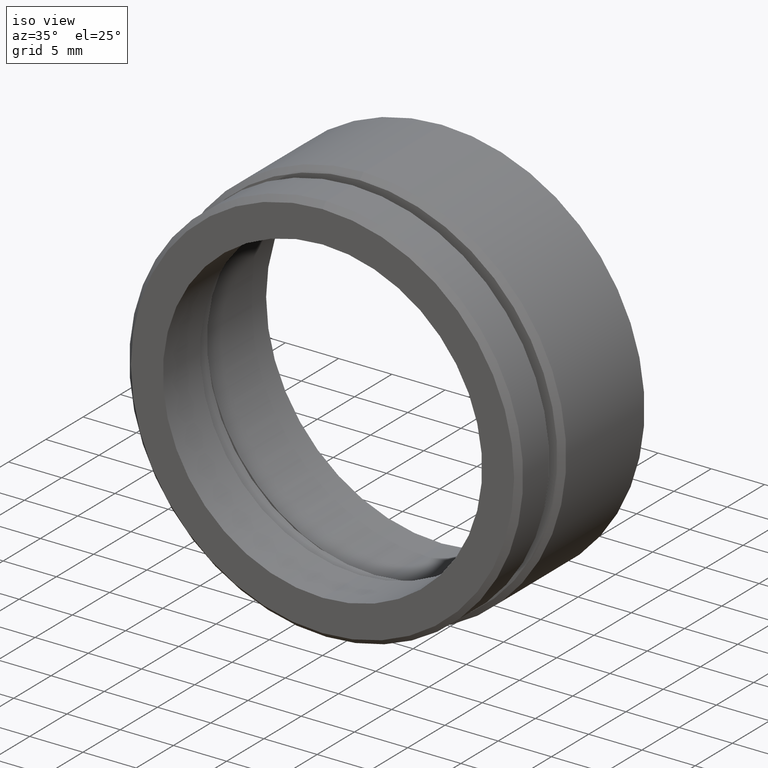
[diagram: clean part render]
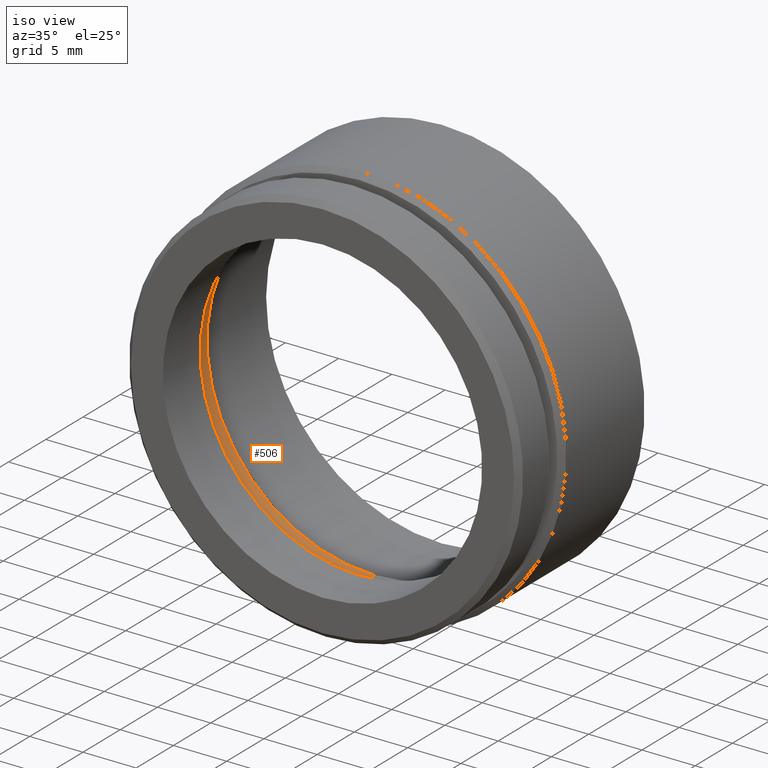
[diagram: same view with one face highlighted and labeled with its STEP entity id]
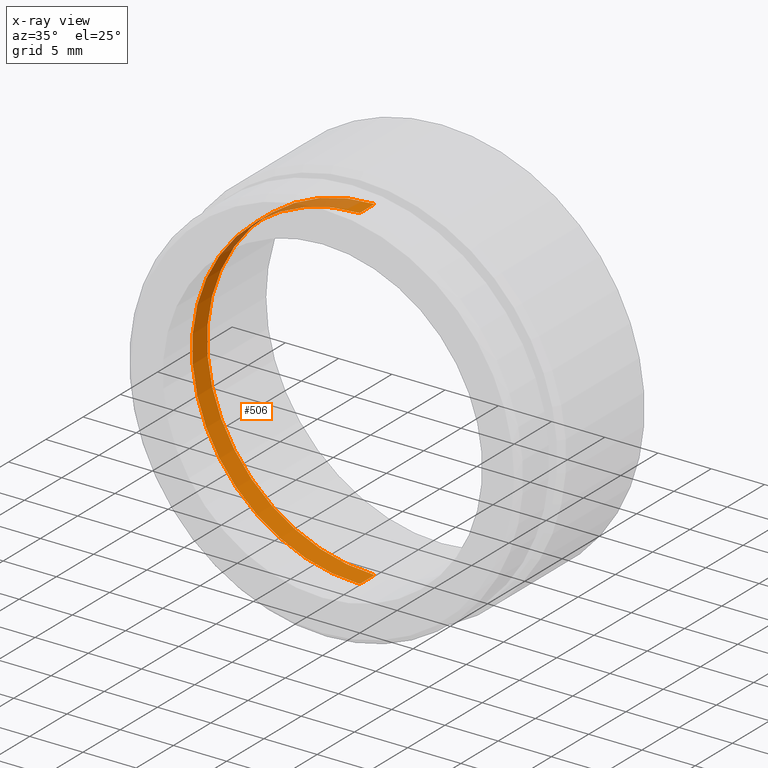
[diagram: x-ray of the same camera — body ghosted, the highlighted face saturated]
A machine part, iso view. The second image highlights one B-rep face of the part: STEP entity #506.
The next image is the same camera in x-ray: the body ghosted, the highlighted face saturated — about 11% of this face is hidden behind the body in this view.
In plain terms, the highlighted cylindrical surface (partial cylindrical patch) has radius 15.75 mm, axis along (-0, -1, -0).
Its self-contained STEP definition (entity closure, byte-faithful):
#10 = DIRECTION ( 'NONE',  ( -0.0000000000000000000, -1.000000000000000000, -0.0000000000000000000 ) ) ;
#12 = CARTESIAN_POINT ( 'NONE',  ( 0.0000000000000000000, 0.0000000000000000000, -15.75000000000000000 ) ) ;
#49 = CARTESIAN_POINT ( 'NONE',  ( 0.0000000000000000000, 7.000000000000000000, 0.0000000000000000000 ) ) ;
#52 = DIRECTION ( 'NONE',  ( -0.0000000000000000000, -1.000000000000000000, -0.0000000000000000000 ) ) ;
#54 = DIRECTION ( 'NONE',  ( 0.0000000000000000000, 0.0000000000000000000, -1.000000000000000000 ) ) ;
#57 = AXIS2_PLACEMENT_3D ( 'NONE', #49, #52, #54 ) ;
#71 = DIRECTION ( 'NONE',  ( 0.0000000000000000000, 0.0000000000000000000, -1.000000000000000000 ) ) ;
#76 = VERTEX_POINT ( 'NONE', #99 ) ;
#99 = CARTESIAN_POINT ( 'NONE',  ( 1.928818708657081700E-015, 7.000000000000000000, 15.75000000000000400 ) ) ;
#143 = DIRECTION ( 'NONE',  ( 0.0000000000000000000, 0.0000000000000000000, -1.000000000000000000 ) ) ;
#145 = CARTESIAN_POINT ( 'NONE',  ( 0.0000000000000000000, 0.0000000000000000000, 0.0000000000000000000 ) ) ;
#152 = DIRECTION ( 'NONE',  ( -0.0000000000000000000, -1.000000000000000000, -0.0000000000000000000 ) ) ;
#157 = VERTEX_POINT ( 'NONE', #830 ) ;
#173 = AXIS2_PLACEMENT_3D ( 'NONE', #721, #523, #71 ) ;
#199 = CIRCLE ( 'NONE', #173, 15.75000000000000000 ) ;
#218 = EDGE_CURVE ( 'NONE', #157, #804, #199, .T. ) ;
#367 = DIRECTION ( 'NONE',  ( -0.0000000000000000000, -1.000000000000000000, -0.0000000000000000000 ) ) ;
#375 = EDGE_CURVE ( 'NONE', #790, #804, #532, .T. ) ;
#392 = CARTESIAN_POINT ( 'NONE',  ( 1.928818708657081300E-015, 0.0000000000000000000, 15.75000000000000000 ) ) ;
#425 = EDGE_CURVE ( 'NONE', #76, #790, #787, .T. ) ;
#436 = EDGE_LOOP ( 'NONE', ( #814, #870, #859, #519 ) ) ;
#506 = ADVANCED_FACE ( 'NONE', ( #748 ), #753, .F. ) ;
#519 = ORIENTED_EDGE ( 'NONE', *, *, #375, .F. ) ;
#523 = DIRECTION ( 'NONE',  ( -0.0000000000000000000, -1.000000000000000000, -0.0000000000000000000 ) ) ;
#532 = LINE ( 'NONE', #12, #826 ) ;
#561 = LINE ( 'NONE', #392, #576 ) ;
#563 = CARTESIAN_POINT ( 'NONE',  ( 0.0000000000000000000, 5.000000000000000000, -15.75000000000000000 ) ) ;
#569 = CARTESIAN_POINT ( 'NONE',  ( 0.0000000000000000000, 7.000000000000000000, -15.75000000000000400 ) ) ;
#576 = VECTOR ( 'NONE', #367, 1000.000000000000000 ) ;
#699 = EDGE_CURVE ( 'NONE', #76, #157, #561, .T. ) ;
#721 = CARTESIAN_POINT ( 'NONE',  ( 0.0000000000000000000, 5.000000000000000000, 0.0000000000000000000 ) ) ;
#748 = FACE_OUTER_BOUND ( 'NONE', #436, .T. ) ;
#753 = CYLINDRICAL_SURFACE ( 'NONE', #775, 15.75000000000000000 ) ;
#775 = AXIS2_PLACEMENT_3D ( 'NONE', #145, #152, #143 ) ;
#787 = CIRCLE ( 'NONE', #57, 15.75000000000000400 ) ;
#790 = VERTEX_POINT ( 'NONE', #569 ) ;
#804 = VERTEX_POINT ( 'NONE', #563 ) ;
#814 = ORIENTED_EDGE ( 'NONE', *, *, #425, .F. ) ;
#826 = VECTOR ( 'NONE', #10, 1000.000000000000000 ) ;
#830 = CARTESIAN_POINT ( 'NONE',  ( 1.928818708657081300E-015, 5.000000000000000000, 15.75000000000000000 ) ) ;
#859 = ORIENTED_EDGE ( 'NONE', *, *, #218, .T. ) ;
#870 = ORIENTED_EDGE ( 'NONE', *, *, #699, .T. ) ;